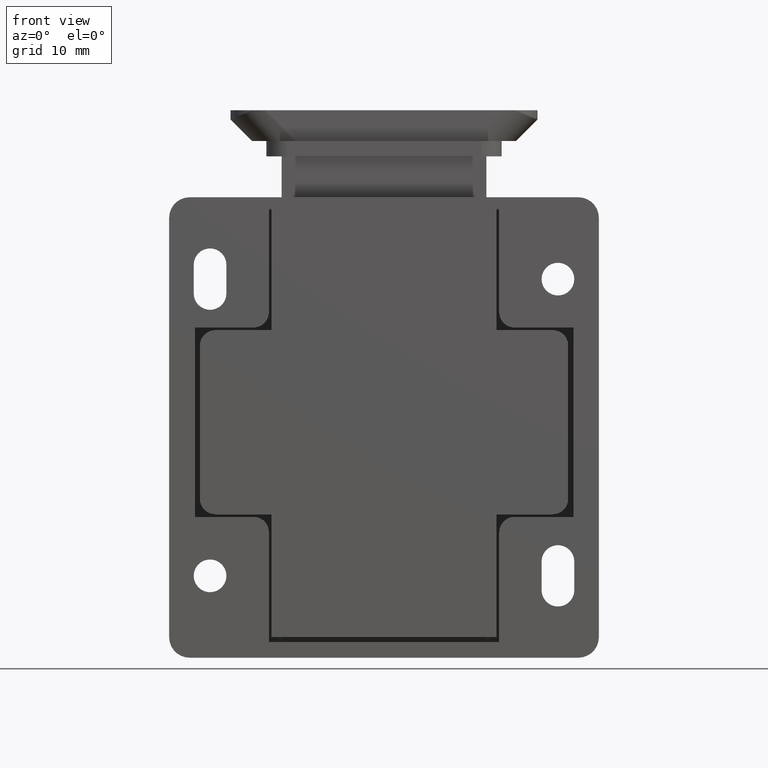
[diagram: clean part render]
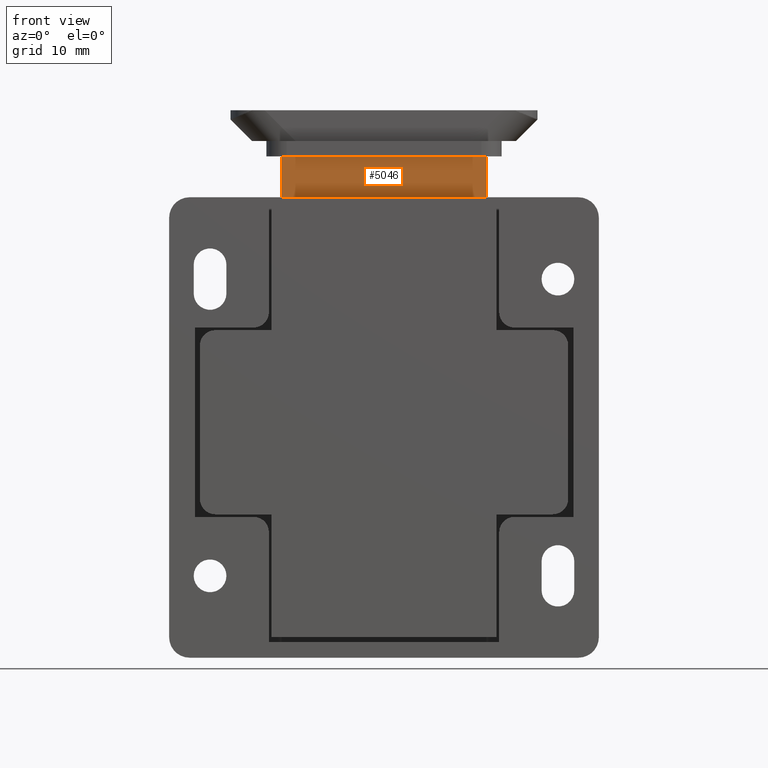
[diagram: same view with one face highlighted and labeled with its STEP entity id]
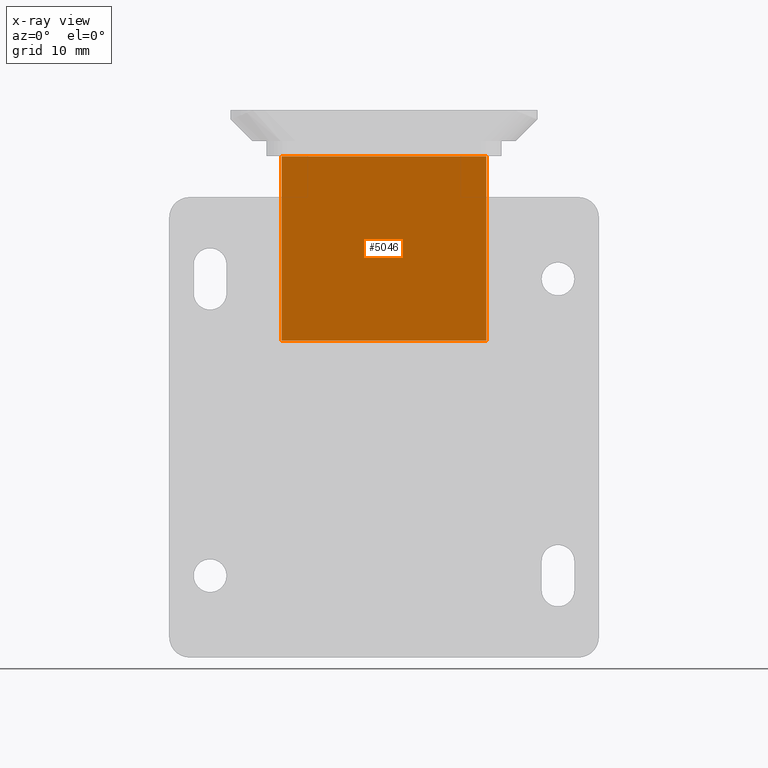
[diagram: x-ray of the same camera — body ghosted, the highlighted face saturated]
A machine part, front view. The second image highlights one B-rep face of the part: STEP entity #5046.
The next image is the same camera in x-ray: the body ghosted, the highlighted face saturated — about 0% of this face is hidden behind the body in this view.
In plain terms, the highlighted planar face has unit normal (0, 1, 0).
Its self-contained STEP definition (entity closure, byte-faithful):
#95 = ORIENTED_EDGE ( 'NONE', *, *, #5337, .F. ) ;
#186 = ORIENTED_EDGE ( 'NONE', *, *, #2006, .F. ) ;
#264 = CARTESIAN_POINT ( 'NONE',  ( 10.00000000000000000, -50.50000000000000000, 3.199996999999999800 ) ) ;
#574 = EDGE_CURVE ( 'NONE', #6639, #3692, #3580, .T. ) ;
#589 = VECTOR ( 'NONE', #1702, 1000.000000000000000 ) ;
#1389 = VECTOR ( 'NONE', #7356, 1000.000000000000000 ) ;
#1702 = DIRECTION ( 'NONE',  ( -1.000000000000000000, 6.454785026890445600E-016, 0.0000000000000000000 ) ) ;
#1712 = PLANE ( 'NONE',  #3739 ) ;
#1976 = LINE ( 'NONE', #5902, #6353 ) ;
#2006 = EDGE_CURVE ( 'NONE', #4917, #6041, #1976, .T. ) ;
#2326 = DIRECTION ( 'NONE',  ( -0.0000000000000000000, 0.0000000000000000000, 1.000000000000000000 ) ) ;
#2335 = CARTESIAN_POINT ( 'NONE',  ( 10.00000000000000000, -31.00000000000002800, 3.199996999999999800 ) ) ;
#2774 = ORIENTED_EDGE ( 'NONE', *, *, #574, .F. ) ;
#2873 = LINE ( 'NONE', #5630, #5843 ) ;
#3345 = FACE_OUTER_BOUND ( 'NONE', #6372, .T. ) ;
#3451 = DIRECTION ( 'NONE',  ( 1.927470528863118800E-016, -1.000000000000000000, 0.0000000000000000000 ) ) ;
#3473 = CARTESIAN_POINT ( 'NONE',  ( 10.00000000000000000, -31.00000000000002800, 3.199996999999999800 ) ) ;
#3580 = LINE ( 'NONE', #2335, #589 ) ;
#3692 = VERTEX_POINT ( 'NONE', #7210 ) ;
#3739 = AXIS2_PLACEMENT_3D ( 'NONE', #6966, #2326, #6460 ) ;
#4020 = CARTESIAN_POINT ( 'NONE',  ( 10.00000000000000000, -49.00000000000002100, 3.199996999999999800 ) ) ;
#4917 = VERTEX_POINT ( 'NONE', #6265 ) ;
#5046 = ADVANCED_FACE ( 'NONE', ( #3345 ), #1712, .F. ) ;
#5337 = EDGE_CURVE ( 'NONE', #6041, #6639, #6124, .T. ) ;
#5630 = CARTESIAN_POINT ( 'NONE',  ( -10.00000000000000000, -31.00000000000000000, 3.199996999999999800 ) ) ;
#5843 = VECTOR ( 'NONE', #3451, 1000.000000000000000 ) ;
#5902 = CARTESIAN_POINT ( 'NONE',  ( 10.00000000000000000, -49.00000000000002100, 3.199996999999999800 ) ) ;
#6041 = VERTEX_POINT ( 'NONE', #4020 ) ;
#6124 = LINE ( 'NONE', #264, #1389 ) ;
#6265 = CARTESIAN_POINT ( 'NONE',  ( -9.999999999999996400, -49.00000000000000000, 3.199996999999999800 ) ) ;
#6353 = VECTOR ( 'NONE', #6508, 1000.000000000000000 ) ;
#6372 = EDGE_LOOP ( 'NONE', ( #186, #6750, #2774, #95 ) ) ;
#6460 = DIRECTION ( 'NONE',  ( 1.000000000000000000, 0.0000000000000000000, 0.0000000000000000000 ) ) ;
#6508 = DIRECTION ( 'NONE',  ( 1.000000000000000000, -0.0000000000000000000, -0.0000000000000000000 ) ) ;
#6619 = EDGE_CURVE ( 'NONE', #3692, #4917, #2873, .T. ) ;
#6639 = VERTEX_POINT ( 'NONE', #3473 ) ;
#6750 = ORIENTED_EDGE ( 'NONE', *, *, #6619, .F. ) ;
#6966 = CARTESIAN_POINT ( 'NONE',  ( 0.0000000000000000000, 0.0000000000000000000, 3.199996999999999800 ) ) ;
#7210 = CARTESIAN_POINT ( 'NONE',  ( -10.00000000000000000, -31.00000000000000000, 3.199996999999999800 ) ) ;
#7356 = DIRECTION ( 'NONE',  ( 0.0000000000000000000, 1.000000000000000000, 0.0000000000000000000 ) ) ;